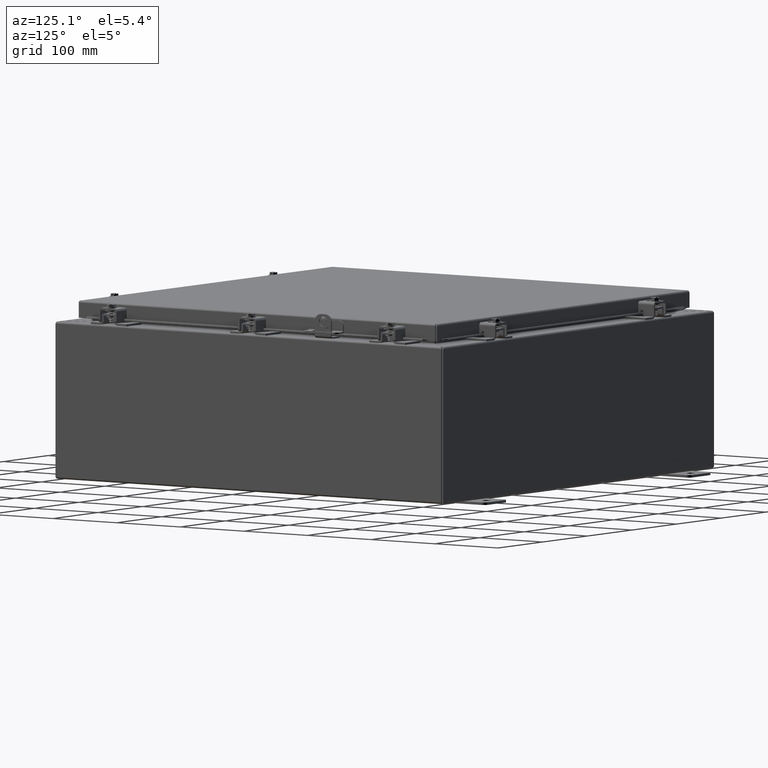
[diagram: clean part render]
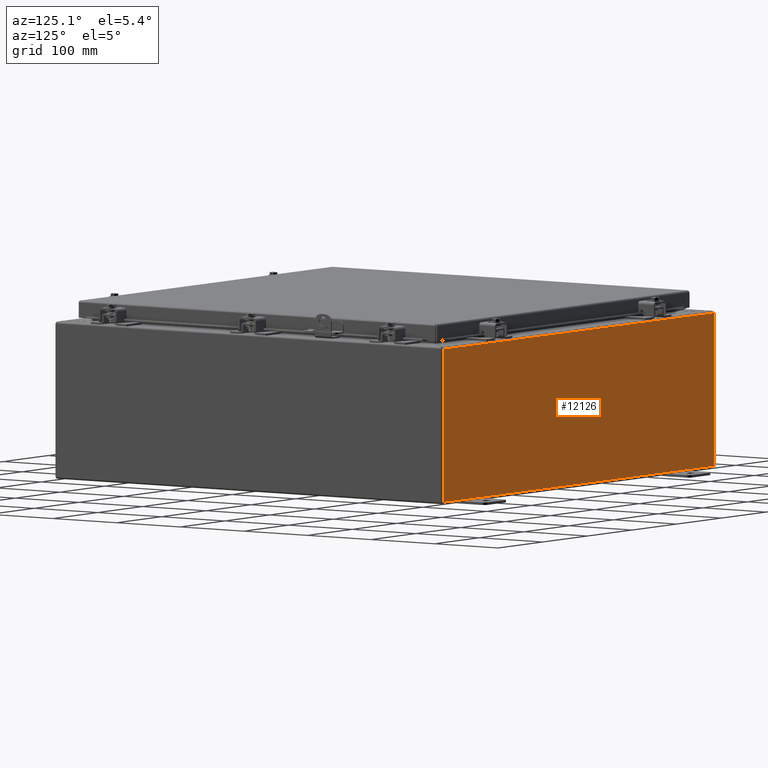
[diagram: same view with one face highlighted and labeled with its STEP entity id]
A machine part, auxiliary view. The second image highlights one B-rep face of the part: STEP entity #12126.
In plain terms, the highlighted planar face has unit normal (-0, -1, 0).
Its self-contained STEP definition (entity closure, byte-faithful):
#1162=PLANE('',#12883);
#1665=LINE('',#18357,#2782);
#1666=LINE('',#18367,#2783);
#1667=LINE('',#18369,#2784);
#1668=LINE('',#18370,#2785);
#2782=VECTOR('',#14254,23.8505857864376);
#2783=VECTOR('',#14257,7.7895);
#2784=VECTOR('',#14258,23.8505857864376);
#2785=VECTOR('',#14259,7.7895);
#3872=FACE_OUTER_BOUND('',#4572,.T.);
#4572=EDGE_LOOP('',(#8912,#8913,#8914,#8915));
#5799=VERTEX_POINT('',#18348);
#5800=VERTEX_POINT('',#18356);
#5801=VERTEX_POINT('',#18366);
#5802=VERTEX_POINT('',#18368);
#7014=EDGE_CURVE('',#5800,#5799,#1665,.T.);
#7016=EDGE_CURVE('',#5801,#5799,#1666,.T.);
#7017=EDGE_CURVE('',#5801,#5802,#1667,.T.);
#7018=EDGE_CURVE('',#5800,#5802,#1668,.T.);
#8912=ORIENTED_EDGE('',*,*,#7014,.T.);
#8913=ORIENTED_EDGE('',*,*,#7016,.F.);
#8914=ORIENTED_EDGE('',*,*,#7017,.T.);
#8915=ORIENTED_EDGE('',*,*,#7018,.F.);
#12126=ADVANCED_FACE('',(#3872),#1162,.F.);
#12883=AXIS2_PLACEMENT_3D('',#18365,#14255,#14256);
#14254=DIRECTION('',(1.,-1.15813860476976E-16,1.17289041475154E-16));
#14255=DIRECTION('center_axis',(-1.15813860476977E-16,-1.,5.42882070796892E-15));
#14256=DIRECTION('ref_axis',(1.,0.,0.));
#14257=DIRECTION('',(6.16297582203915E-31,5.39030285815812E-15,1.));
#14258=DIRECTION('',(-1.,1.15813860476977E-16,4.01570691751066E-33));
#14259=DIRECTION('',(-6.16297582203915E-31,-5.39030285815812E-15,-1.));
#18348=CARTESIAN_POINT('',(11.9252928932188,12.,7.89475));
#18356=CARTESIAN_POINT('',(-11.9252928932188,12.,7.89475));
#18357=CARTESIAN_POINT('',(-5.96264644660941,12.,7.89475));
#18365=CARTESIAN_POINT('Origin',(-6.26898037639078E-16,12.,4.02235902495404));
#18366=CARTESIAN_POINT('',(11.9252928932188,12.,0.105249999999998));
#18367=CARTESIAN_POINT('',(11.9252928932188,12.,0.105249999999998));
#18368=CARTESIAN_POINT('',(-11.9252928932188,12.,0.105249999999998));
#18369=CARTESIAN_POINT('',(-3.10475088481907E-15,12.,0.105250000000001));
#18370=CARTESIAN_POINT('',(-11.9252928932188,12.,0.105249999999998));